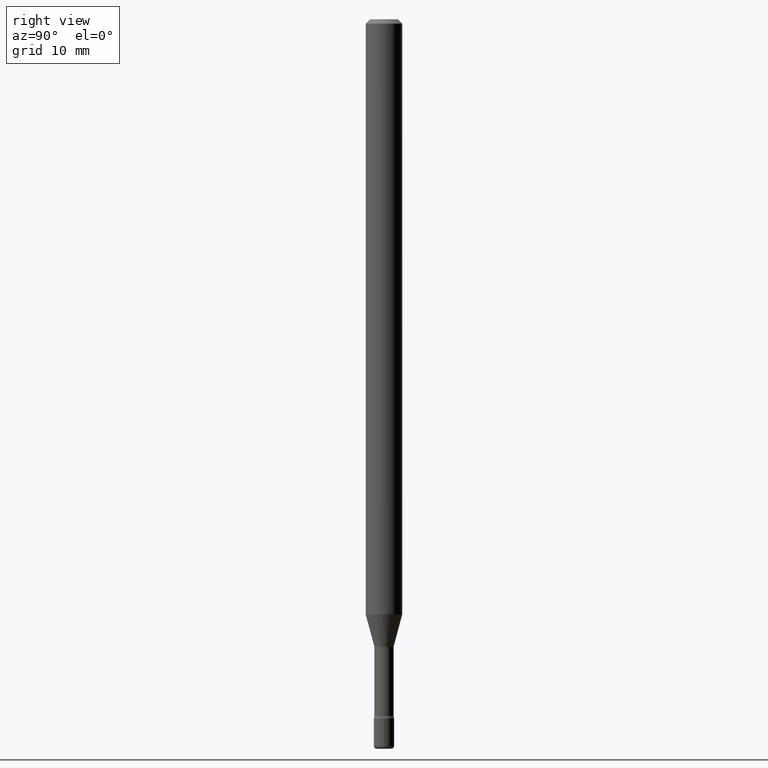
[diagram: clean part render]
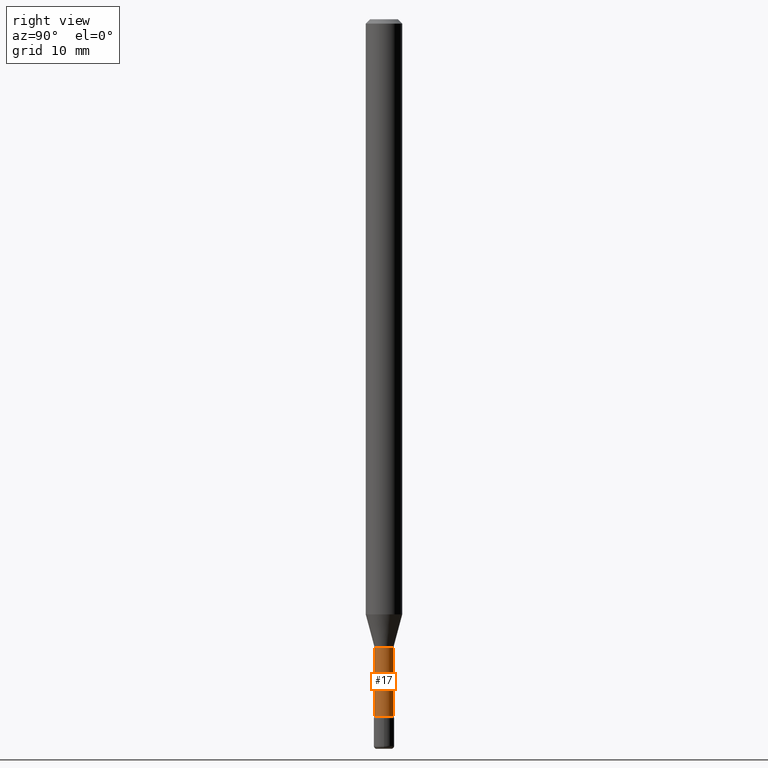
[diagram: same view with one face highlighted and labeled with its STEP entity id]
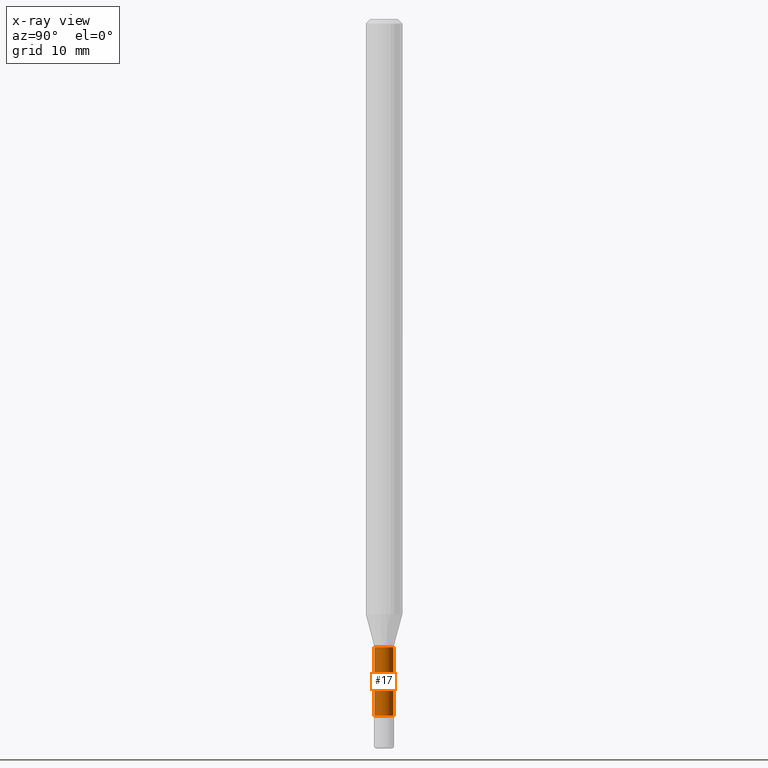
[diagram: x-ray of the same camera — body ghosted, the highlighted face saturated]
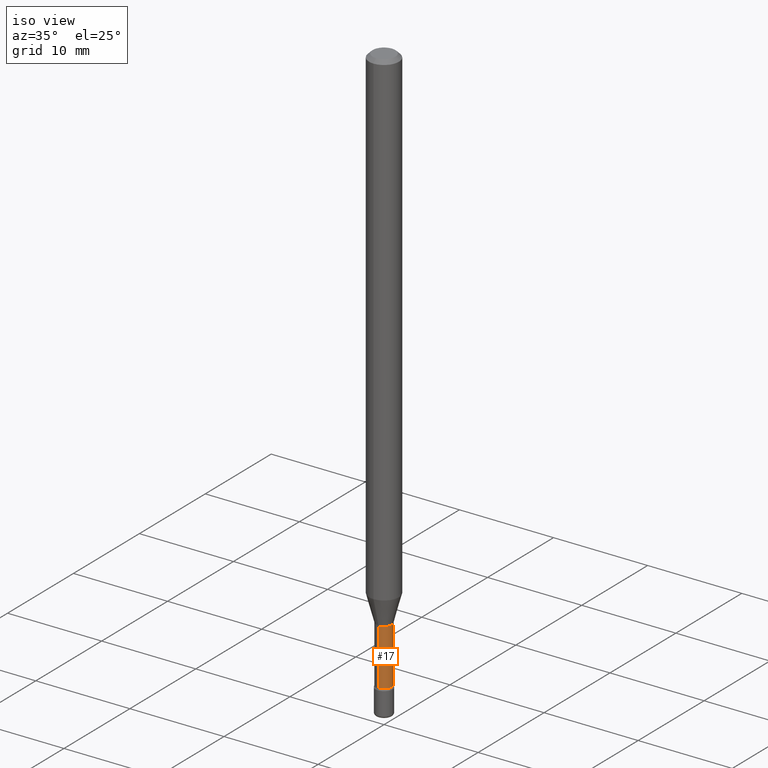
[diagram: same view with one face highlighted and labeled with its STEP entity id]
A machine part, right view. The second image highlights one B-rep face of the part: STEP entity #17.
The next image is the same camera in x-ray: the body ghosted, the highlighted face saturated — about 0% of this face is hidden behind the body in this view.
A second angle (iso view) of the same face is appended — the face is thin or edge-on in the first view.
In plain terms, the highlighted cylindrical surface (edge-blend (fillet) strip) has radius 0.8357 mm, axis along (-0, 0, 1).
Its self-contained STEP definition (entity closure, byte-faithful):
#17 = ADVANCED_FACE ( 'NONE', ( #325 ), #500, .T. ) ;
#84 = ORIENTED_EDGE ( 'NONE', *, *, #279, .T. ) ;
#94 = ORIENTED_EDGE ( 'NONE', *, *, #215, .T. ) ;
#114 = DIRECTION ( 'NONE',  ( -2.445361929537154917E-29, 3.491634392286096321E-15, 1.000000000000000000 ) ) ;
#119 = CARTESIAN_POINT ( 'NONE',  ( -2.297394720958204179E-16, -0.03290000000000842945, -2.387345589506696619 ) ) ;
#149 = VERTEX_POINT ( 'NONE', #119 ) ;
#165 = DIRECTION ( 'NONE',  ( -2.445361929537154917E-29, 3.491634392286096321E-15, 1.000000000000000000 ) ) ;
#177 = CARTESIAN_POINT ( 'NONE',  ( -2.297394720958784485E-16, -0.03290000000000004726, 5.929481703974587272E-16 ) ) ;
#184 = VERTEX_POINT ( 'NONE', #365 ) ;
#193 = CARTESIAN_POINT ( 'NONE',  ( -1.169113584055446105E-44, 1.669184350826100908E-30, 4.780733988912460139E-16 ) ) ;
#202 = CARTESIAN_POINT ( 'NONE',  ( 2.412292587906125932E-16, 0.03289999999999175528, -2.387345589506696619 ) ) ;
#210 = LINE ( 'NONE', #177, #309 ) ;
#215 = EDGE_CURVE ( 'NONE', #287, #184, #390, .T. ) ;
#221 = DIRECTION ( 'NONE',  ( -6.982962677686265133E-15, -1.000000000000000000, 0.000000000000000000 ) ) ;
#232 = CARTESIAN_POINT ( 'NONE',  ( 5.837924017228111976E-29, -8.335737966594106856E-15, -2.387345589506696619 ) ) ;
#237 = EDGE_LOOP ( 'NONE', ( #84, #94, #428, #523 ) ) ;
#243 = DIRECTION ( 'NONE',  ( -6.982962677686265133E-15, -1.000000000000000000, 3.491634392286094348E-15 ) ) ;
#279 = EDGE_CURVE ( 'NONE', #149, #287, #512, .T. ) ;
#287 = VERTEX_POINT ( 'NONE', #202 ) ;
#300 = DIRECTION ( 'NONE',  ( -6.982962677686266711E-15, -1.000000000000000000, 0.000000000000000000 ) ) ;
#309 = VECTOR ( 'NONE', #165, 39.37007874015748143 ) ;
#312 = CARTESIAN_POINT ( 'NONE',  ( 5.262357218587814766E-29, -7.513909179241206532E-15, -2.151974787463811101 ) ) ;
#314 = CARTESIAN_POINT ( 'NONE',  ( 2.337685600650732477E-16, 0.03290000000000004726, 3.631986273850333500E-16 ) ) ;
#325 = FACE_OUTER_BOUND ( 'NONE', #237, .T. ) ;
#339 = AXIS2_PLACEMENT_3D ( 'NONE', #193, #114, #243 ) ;
#350 = AXIS2_PLACEMENT_3D ( 'NONE', #312, #394, #221 ) ;
#363 = VECTOR ( 'NONE', #455, 39.37007874015748143 ) ;
#365 = CARTESIAN_POINT ( 'NONE',  ( 2.337685600651315248E-16, 0.03289999999999248387, -2.151974787463811101 ) ) ;
#366 = EDGE_CURVE ( 'NONE', #149, #515, #210, .T. ) ;
#385 = CIRCLE ( 'NONE', #350, 0.03289999999999999869 ) ;
#390 = LINE ( 'NONE', #314, #363 ) ;
#394 = DIRECTION ( 'NONE',  ( -2.445361929537154917E-29, 3.491634392286096321E-15, 1.000000000000000000 ) ) ;
#428 = ORIENTED_EDGE ( 'NONE', *, *, #479, .F. ) ;
#455 = DIRECTION ( 'NONE',  ( -2.445361929537154917E-29, 3.491634392286096321E-15, 1.000000000000000000 ) ) ;
#469 = AXIS2_PLACEMENT_3D ( 'NONE', #232, #560, #300 ) ;
#479 = EDGE_CURVE ( 'NONE', #515, #184, #385, .T. ) ;
#500 = CYLINDRICAL_SURFACE ( 'NONE', #339, 0.03290000000000004726 ) ;
#512 = CIRCLE ( 'NONE', #469, 0.03290000000000008890 ) ;
#515 = VERTEX_POINT ( 'NONE', #534 ) ;
#523 = ORIENTED_EDGE ( 'NONE', *, *, #366, .F. ) ;
#534 = CARTESIAN_POINT ( 'NONE',  ( -2.297394720958254962E-16, -0.03290000000000750657, -2.151974787463811101 ) ) ;
#560 = DIRECTION ( 'NONE',  ( -2.445361929537154917E-29, 3.491634392286096321E-15, 1.000000000000000000 ) ) ;